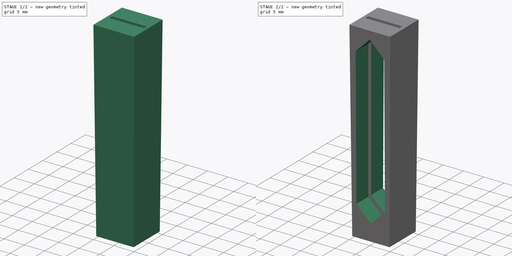
[diagram: build sequence overview — one tinted view per stage of 2, left to right]
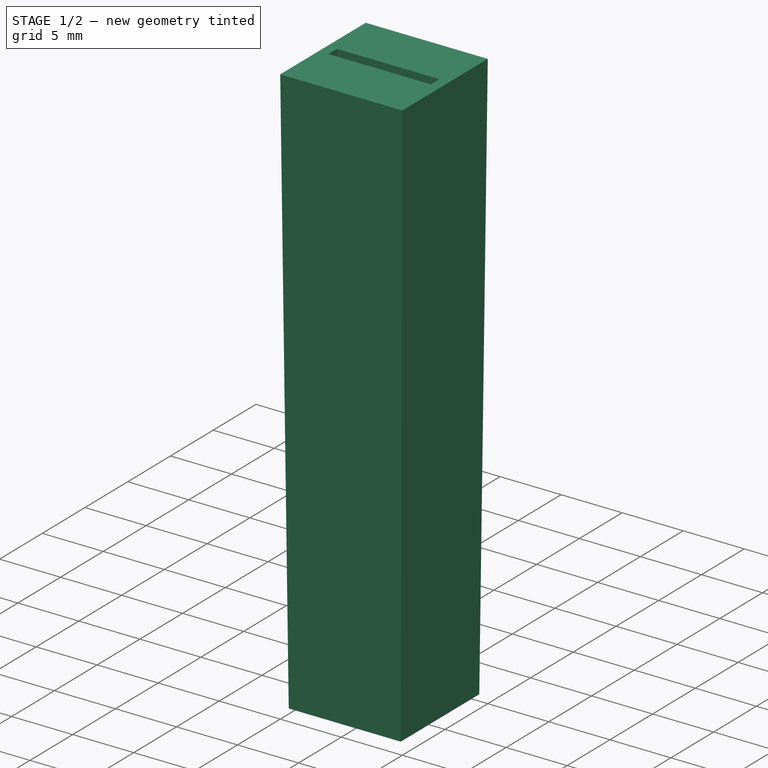
[diagram: stage 1 of 2 — iso view after this stage's code; geometry added in this stage tinted green]
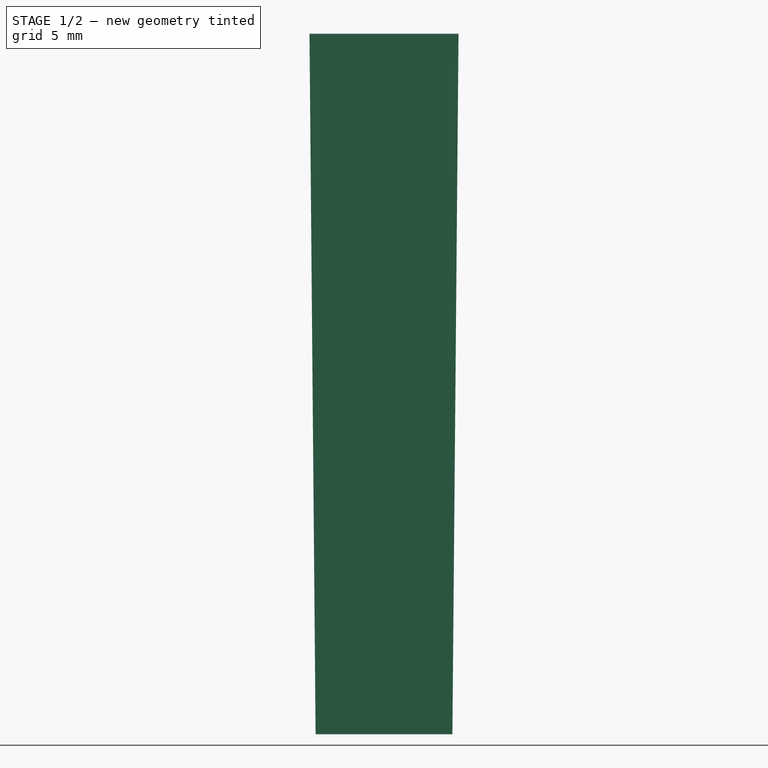
[diagram: stage 1 of 2 — front view after this stage's code; geometry added in this stage tinted green]
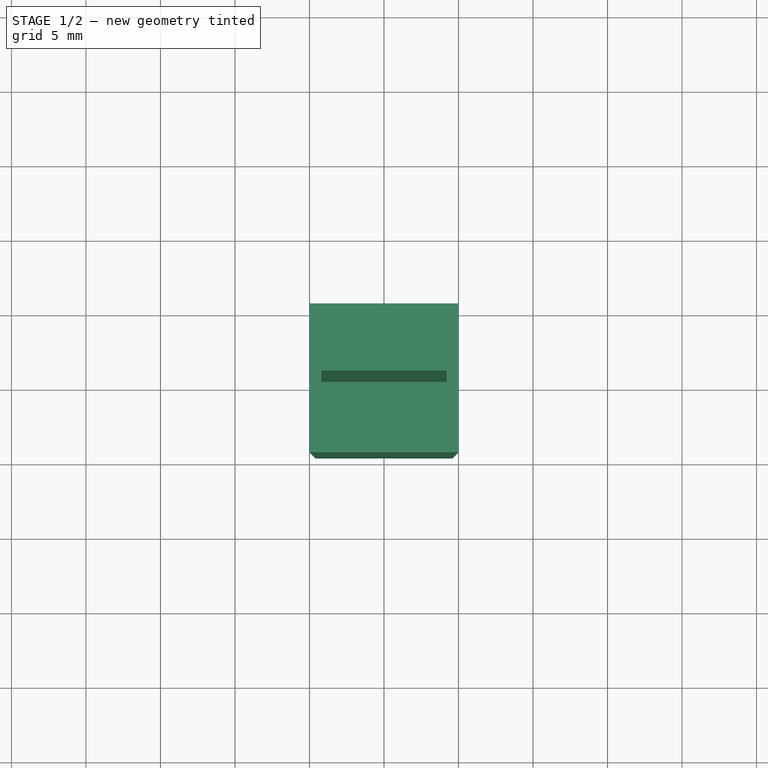
[diagram: stage 1 of 2 — top view after this stage's code; geometry added in this stage tinted green]
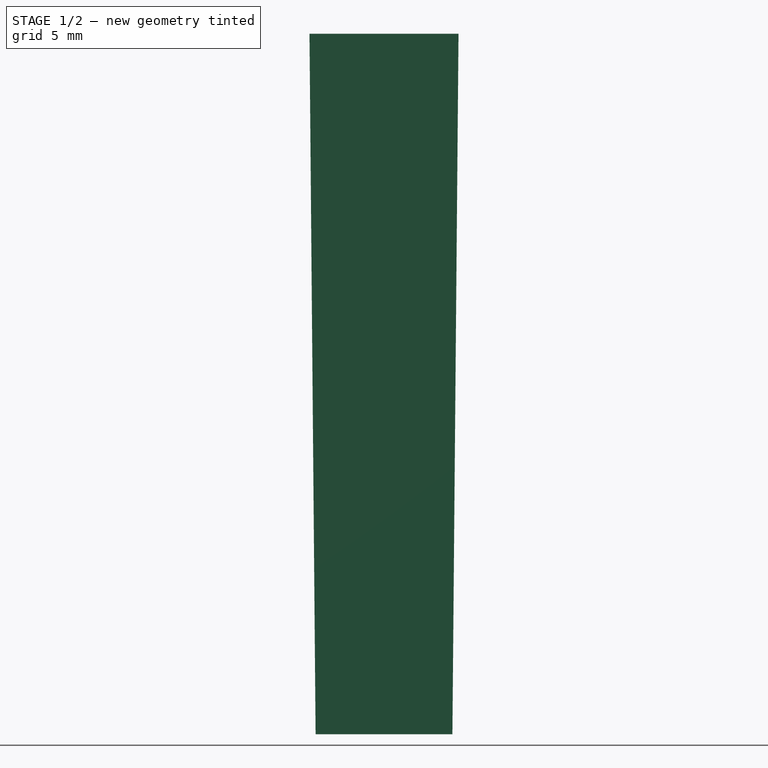
[diagram: stage 1 of 2 — right view after this stage's code; geometry added in this stage tinted green]
FCSTD DOCUMENT  (FreeCAD 1.0R38641 +678 (Git))
Label: lee-filter-holder-for-cuvette
License: All rights reserved
LicenseURL: https://en.wikipedia.org/wiki/All_rights_reserved
objects: Sketcher::SketchObject×3, PartDesign::Pocket×2, PartDesign::Pad×1, PartDesign::Body×1
note: 16 computed .brp shape members not serialized (recipe doc carries the construction recipe); baked Part::Feature solids carry a one-line shape summary decoded from their .brp

FEATURE [Sketcher::SketchObject] Sketch
  ArcFitTolerance = 1e-06
  AttachmentSupport = -> [XY_Plane]
  FullyConstrained = true
  MakeInternals = false
  MapMode = 5
  sketch-geometry (4):
    g0: LineSegment StartX=0 StartY=0 StartZ=0 EndX=10 EndY=0 EndZ=0
    g1: LineSegment StartX=10 StartY=0 StartZ=0 EndX=10 EndY=10 EndZ=0
    g2: LineSegment StartX=10 StartY=10 StartZ=0 EndX=0 EndY=10 EndZ=0
    g3: LineSegment StartX=0 StartY=10 StartZ=0 EndX=0 EndY=0 EndZ=0
  constraints (11):
    c: Coincident(g0,g1)
    c: Coincident(g1,g2)
    c: Coincident(g2,g3)
    c: Coincident(g3,g0)
    c: Horizontal(g0)
    c: Horizontal(g2)
    c: Vertical(g1)
    c: Vertical(g3)
    c: Coincident(g0,g-1)
    c: DistanceX(g2,g2) = 10
    c: Distance(g3,g3) = 10
FEATURE [PartDesign::Pad] Pad
  Direction = (0,0,1)
  Length = 47
  Length2 = 10
  Profile = -> Sketch
  ReferenceAxis = -> Sketch [N_Axis]
  Refine = true
  Reversed = true
  Suppressed = false
  TaperAngle = -0.5
  Type = 0
FEATURE [Sketcher::SketchObject] Sketch001
  ArcFitTolerance = 1e-06
  AttachmentSupport = -> [Pad]
  ExternalGeometry = -> [Pad]
  FullyConstrained = true
  MakeInternals = false
  MapMode = 5
  sketch-geometry (8):
    g0: LineSegment StartX=0.8 StartY=5.5 StartZ=0 EndX=0.8 EndY=4.5 EndZ=0
    g1: LineSegment StartX=0.8 StartY=4.5 StartZ=0 EndX=9.2 EndY=4.5 EndZ=0
    g2: LineSegment StartX=9.2 StartY=4.5 StartZ=0 EndX=9.2 EndY=5.5 EndZ=0
    g3: LineSegment StartX=9.2 StartY=5.5 StartZ=0 EndX=0.8 EndY=5.5 EndZ=0
    g4: LineSegment [constr] StartX=0 StartY=5 StartZ=0 EndX=10 EndY=5 EndZ=0
    g5: GeomPoint [constr] X=5 Y=5 Z=0
    g6: GeomPoint [constr] X=0.8 Y=5 Z=0
    g7: GeomPoint [constr] X=9.2 Y=5 Z=0
  constraints (16):
    c: Coincident(g0,g1)
    c: Coincident(g1,g2)
    c: Coincident(g2,g3)
    c: Vertical(g0)
    c: Vertical(g2)
    c: Horizontal(g1)
    c: Horizontal(g3)
    c: DistanceY(g0,g0) = 1
    c: Coincident(g3,g0)
    c: Symmetric(g-4,g-4,g4)
    c: Symmetric(g-3,g-3,g4)
    c: Symmetric(g4,g4,g5)
    c: Symmetric(g0,g0,g6)
    c: Symmetric(g2,g2,g7)
    c: Symmetric(g7,g6,g5)
    c: Distance(g-3,g2) = 0.8
FEATURE [PartDesign::Pocket] Pocket
  BaseFeature = -> Pad
  Direction = (0,0,-1)
  Length = 0
  Length2 = 5
  Offset = -3
  Profile = -> Sketch001
  ReferenceAxis = -> Sketch001 [N_Axis]
  Refine = true
  Suppressed = false
  Type = 3
  UpToFace = -> Pad [Face6]
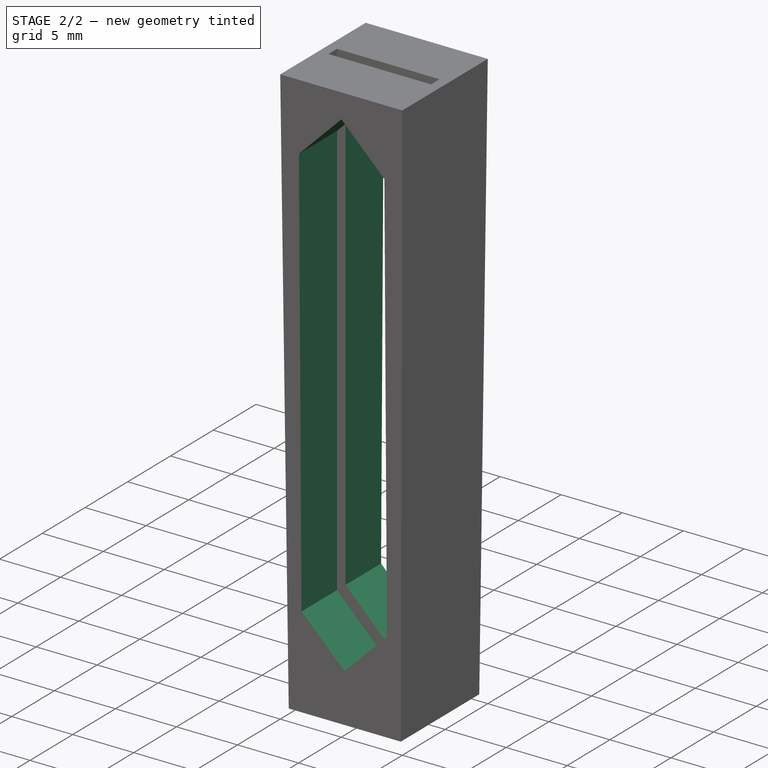
[diagram: stage 2 of 2 — iso view after this stage's code; geometry added in this stage tinted green]
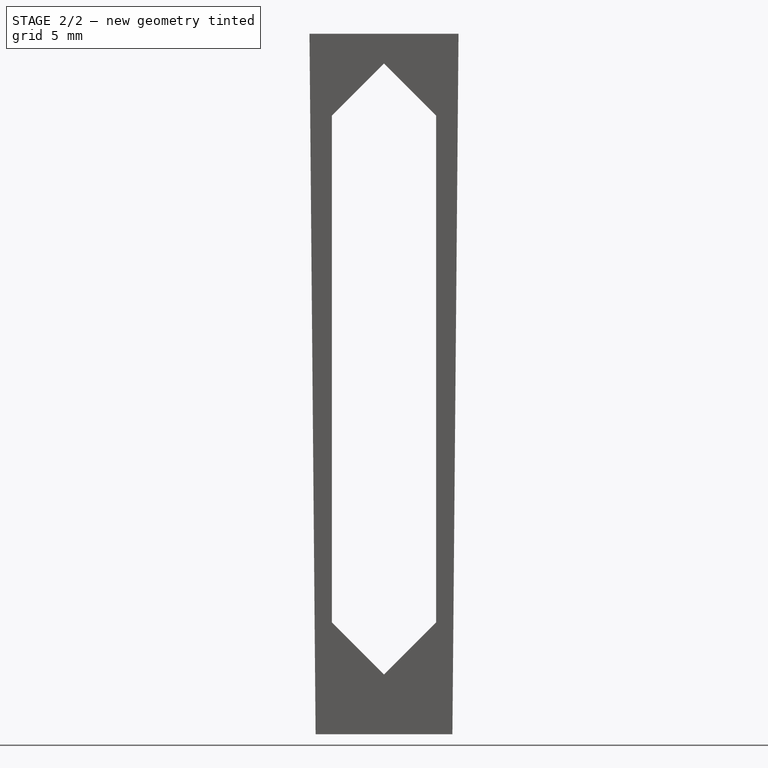
[diagram: stage 2 of 2 — front view after this stage's code; geometry added in this stage tinted green]
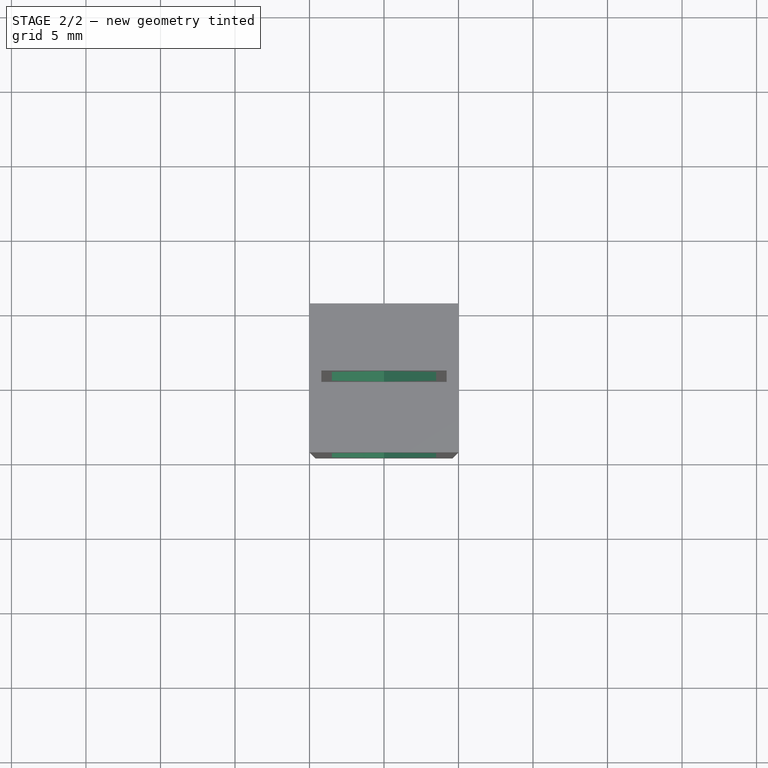
[diagram: stage 2 of 2 — top view after this stage's code; geometry added in this stage tinted green]
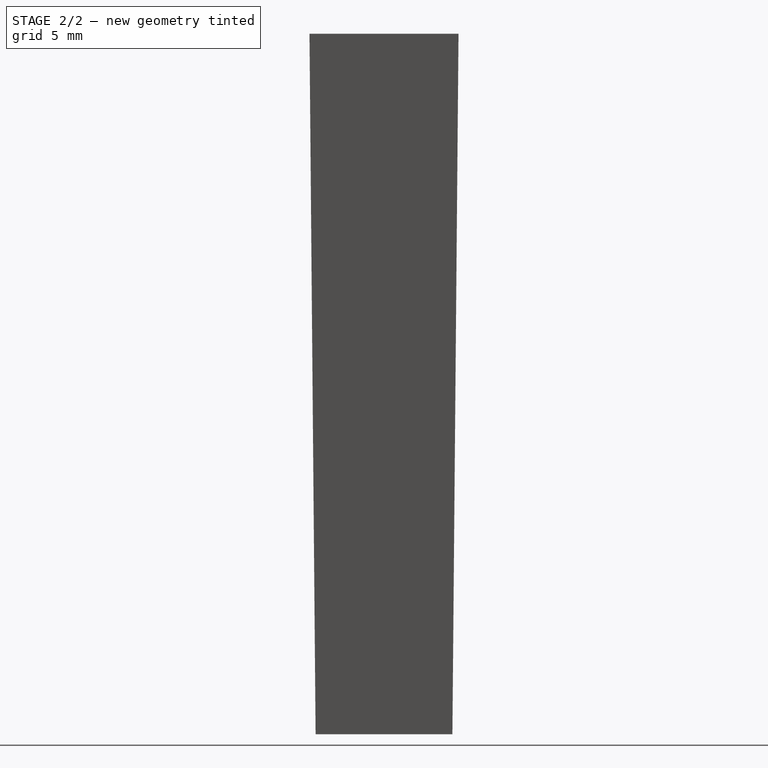
[diagram: stage 2 of 2 — right view after this stage's code; geometry added in this stage tinted green]
FEATURE [Sketcher::SketchObject] Sketch002
  ArcFitTolerance = 1e-06
  AttachmentSupport = -> [Pocket]
  ExternalGeometry = -> [Pocket]
  FullyConstrained = true
  MakeInternals = false
  MapMode = 5
  Placement = pos=(0,4e-16,0) rot=(1,0,0;1.57952rad)
  sketch-geometry (11):
    g0: LineSegment [constr] StartX=5 StartY=0 StartZ=0 EndX=5 EndY=-47.0018 EndZ=0
    g1: LineSegment StartX=1.5 StartY=-5.5 StartZ=0 EndX=1.5 EndY=-39.5018 EndZ=0
    g2: LineSegment [constr] StartX=1.5 StartY=-39.5018 StartZ=0 EndX=8.5 EndY=-39.5018 EndZ=0
    g3: LineSegment StartX=8.5 StartY=-39.5018 StartZ=0 EndX=8.5 EndY=-5.5 EndZ=0
    g4: LineSegment [constr] StartX=8.5 StartY=-5.5 StartZ=0 EndX=1.5 EndY=-5.5 EndZ=0
    g5: LineSegment StartX=1.5 StartY=-5.5 StartZ=0 EndX=5 EndY=-2 EndZ=0
    g6: LineSegment StartX=8.5 StartY=-5.5 StartZ=0 EndX=5 EndY=-2 EndZ=0
    g7: LineSegment StartX=1.5 StartY=-39.5018 StartZ=0 EndX=5 EndY=-43.0018 EndZ=0
    g8: LineSegment StartX=8.5 StartY=-39.5018 StartZ=0 EndX=5 EndY=-43.0018 EndZ=0
    g9: GeomPoint X=5 Y=-5.5 Z=0
    g10: GeomPoint X=5 Y=-39.5018 Z=0
  constraints (26):
    c: Symmetric(g-3,g-3,g0)
    c: Symmetric(g-4,g-4,g0)
    c: Coincident(g1,g2)
    c: Coincident(g2,g3)
    c: Coincident(g3,g4)
    c: Coincident(g4,g1)
    c: Vertical(g1)
    c: Vertical(g3)
    c: Horizontal(g2)
    c: Horizontal(g4)
    c: Coincident(g5,g1)
    c: PointOnObject(g5,g0)
    c: Coincident(g6,g3)
    c: Coincident(g6,g5)
    c: PointOnObject(g7,g0)
    c: Coincident(g8,g2)
    c: Coincident(g8,g7)
    c: Symmetric(g4,g4,g9)
    c: Symmetric(g2,g2,g10)
    c: PointOnObject(g9,g0)
    c: Coincident(g7,g1)
    c: Angle(g8,g0) = 0.785398
    c: Angle(g6,g4) = 0.785398
    c: Distance(g1,g3) = 7
    c: DistanceY(g0,g7) = 4
    c: Distance(g5,g-3) = 2
FEATURE [PartDesign::Pocket] Pocket001
  BaseFeature = -> Pocket
  Direction = (0,-1,0)
  Length = 0
  Length2 = 5
  Profile = -> Sketch002
  ReferenceAxis = -> Pocket [Edge6]
  Refine = true
  Reversed = true
  Suppressed = false
  Type = 3
  UpToFace = -> Pocket [Face6]
FEATURE [PartDesign::Body] Body
  AllowCompound = false
  Group = -> [Sketch,Pad,Sketch001,Pocket,Sketch002,Pocket001]
  Origin = -> Origin
  Tip = -> Pocket001
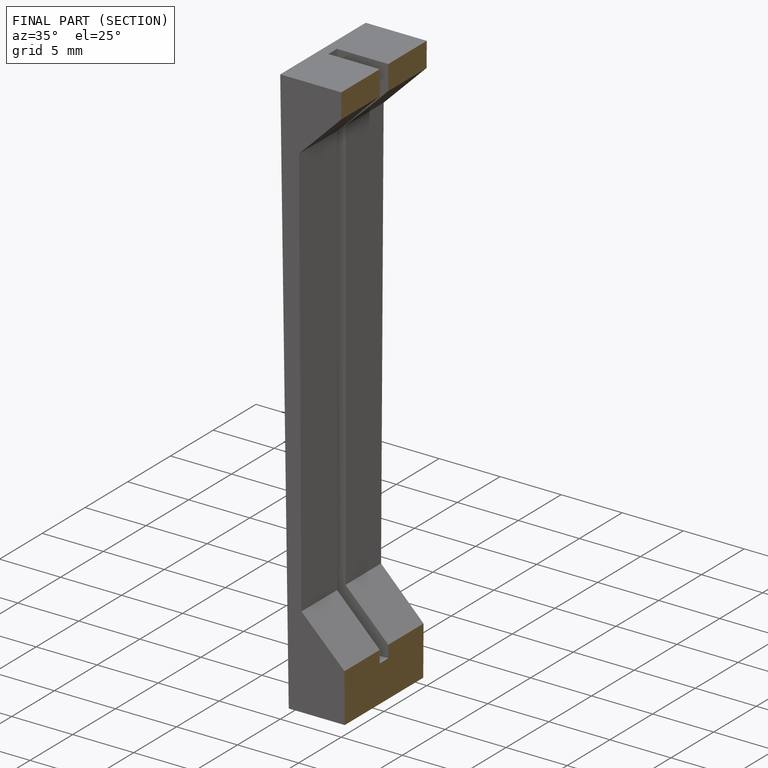
[diagram: finished part — half-section view (interior)]
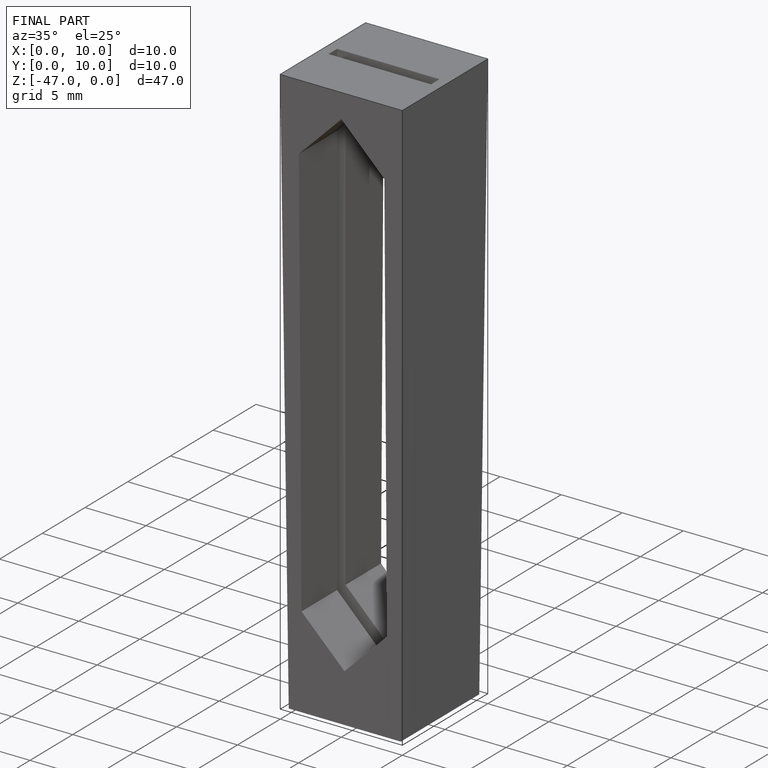
[diagram: finished part — iso view with bounding-box wireframe]
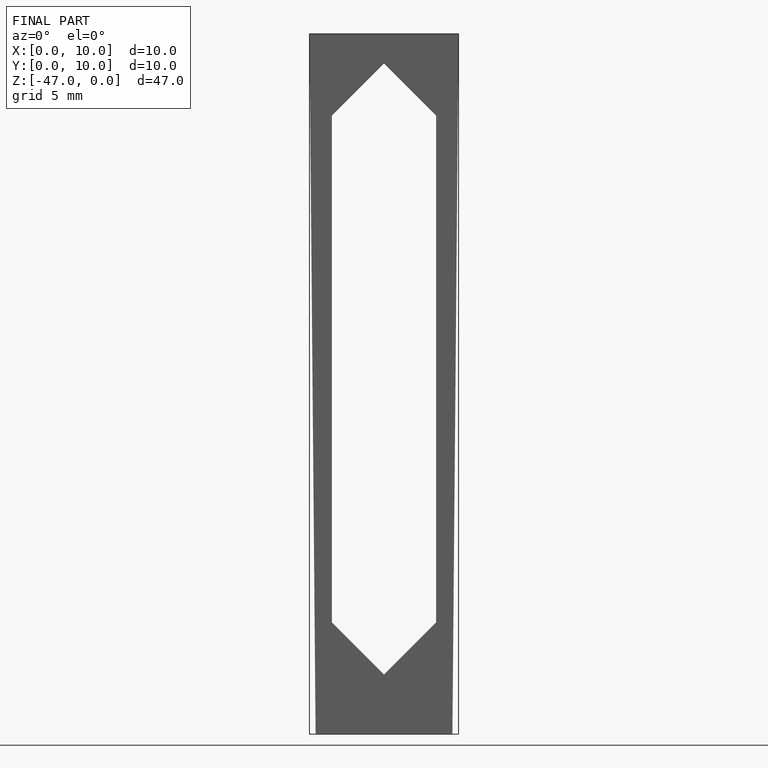
[diagram: finished part — front view with bounding-box wireframe]
